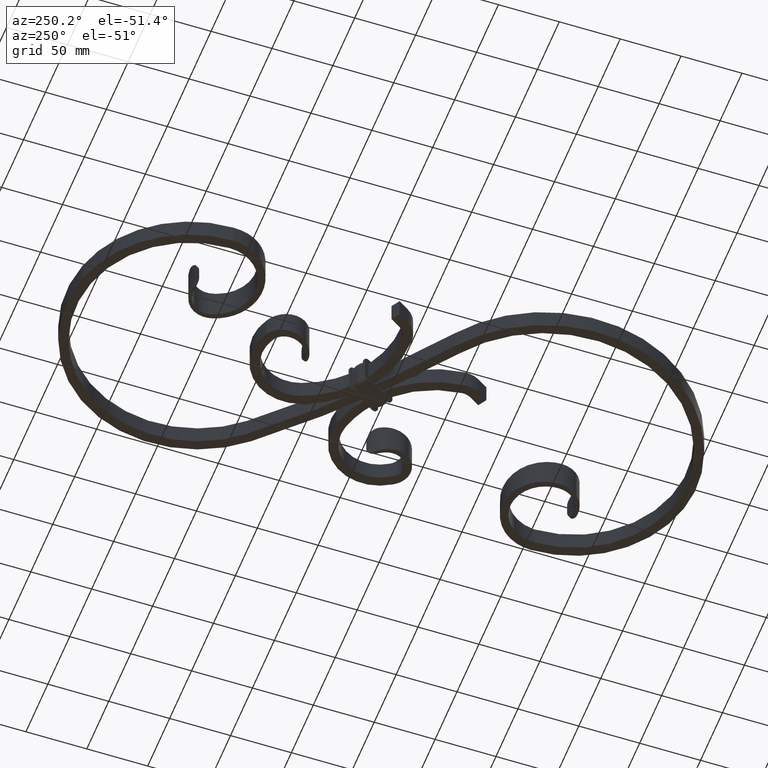
[diagram: clean part render]
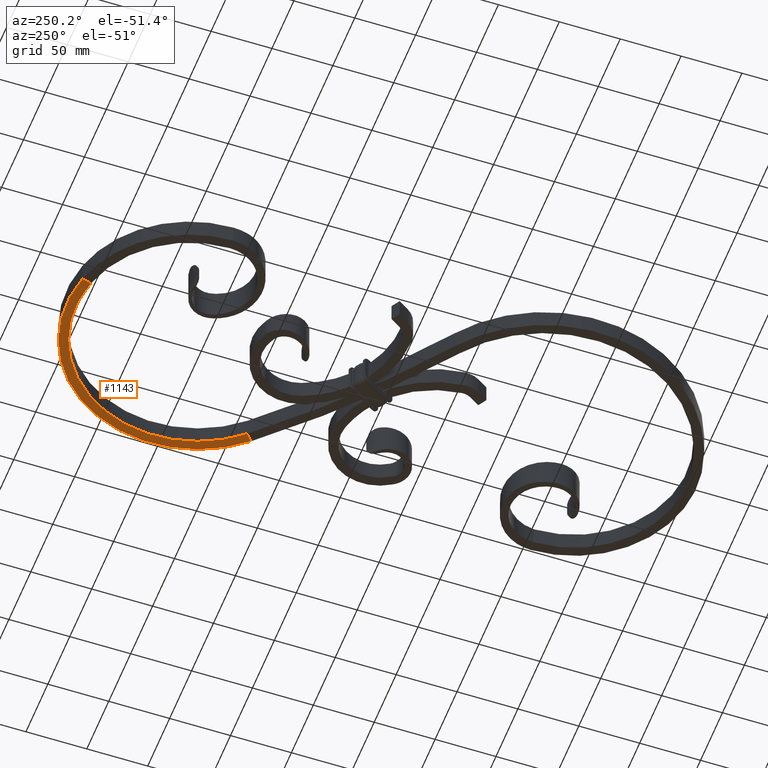
[diagram: same view with one face highlighted and labeled with its STEP entity id]
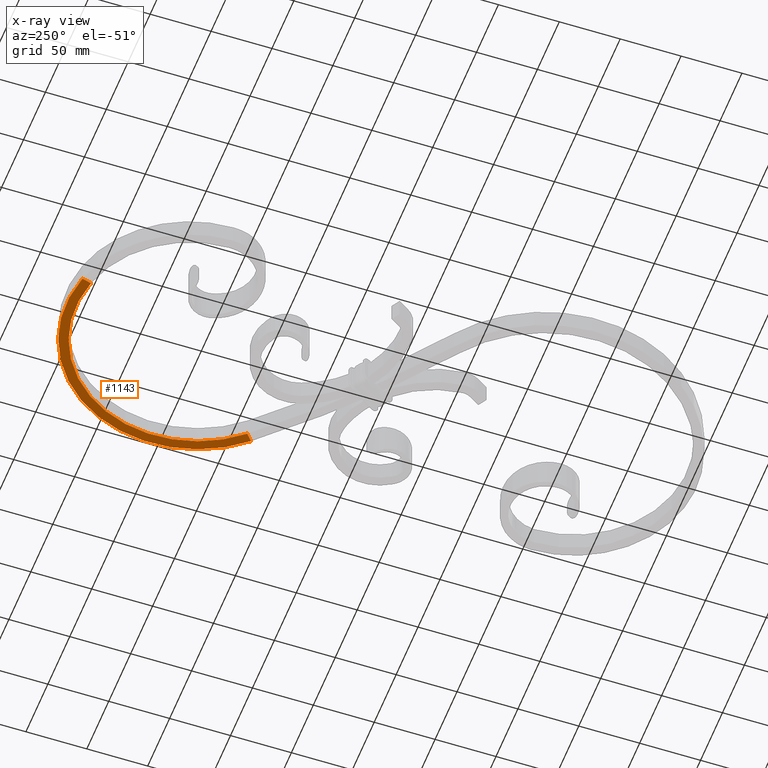
[diagram: x-ray of the same camera — body ghosted, the highlighted face saturated]
A machine part, auxiliary view. The second image highlights one B-rep face of the part: STEP entity #1143.
The next image is the same camera in x-ray: the body ghosted, the highlighted face saturated — about 0% of this face is hidden behind the body in this view.
In plain terms, the highlighted planar face has unit normal (-0, 0, -1).
Its self-contained STEP definition (entity closure, byte-faithful):
#258 = VECTOR ( 'NONE', #15962, 1000.000000000000114 ) ;
#297 = CARTESIAN_POINT ( 'NONE',  ( -23.00000000000000711, 248.8245836551853927, -8.000000000000000000 ) ) ;
#515 = LINE ( 'NONE', #7267, #4664 ) ;
#1143 = ADVANCED_FACE ( 'NONE', ( #12350 ), #11701, .T. ) ;
#1395 = CARTESIAN_POINT ( 'NONE',  ( -24.99999999999998579, 256.5705503476002605, -8.000000000000000000 ) ) ;
#1455 = CARTESIAN_POINT ( 'NONE',  ( 82.05368058509193929, 79.50580557878959098, -8.000000000000000000 ) ) ;
#1512 = AXIS2_PLACEMENT_3D ( 'NONE', #5872, #10064, #7119 ) ;
#2724 = EDGE_LOOP ( 'NONE', ( #17123, #13056, #4266, #12515 ) ) ;
#4266 = ORIENTED_EDGE ( 'NONE', *, *, #16574, .T. ) ;
#4330 = DIRECTION ( 'NONE',  ( -0.2499999999999998335, 0.9682458365518543664, 0.000000000000000000 ) ) ;
#4664 = VECTOR ( 'NONE', #17497, 1000.000000000000000 ) ;
#4904 = AXIS2_PLACEMENT_3D ( 'NONE', #14545, #10187, #13132 ) ;
#5605 = AXIS2_PLACEMENT_3D ( 'NONE', #5738, #6001, #4330 ) ;
#5738 = CARTESIAN_POINT ( 'NONE',  ( 1.999999999999987121, 151.9999999999999716, -8.000000000000000000 ) ) ;
#5872 = CARTESIAN_POINT ( 'NONE',  ( -25.00000000000018829, 256.5705503476009994, -8.000000000000000000 ) ) ;
#6001 = DIRECTION ( 'NONE',  ( -0.000000000000000000, -0.000000000000000000, -1.000000000000000000 ) ) ;
#6188 = EDGE_CURVE ( 'NONE', #12107, #9625, #15256, .T. ) ;
#6237 = CARTESIAN_POINT ( 'NONE',  ( 76.12377831952960605, 84.87574590628662463, -8.000000000000000000 ) ) ;
#7119 = DIRECTION ( 'NONE',  ( -1.000000000000000000, 0.000000000000000000, 0.000000000000000000 ) ) ;
#7267 = CARTESIAN_POINT ( 'NONE',  ( 82.05368058509193929, 79.50580557878963361, -8.000000000000000000 ) ) ;
#9075 = CIRCLE ( 'NONE', #5605, 108.0000000000007958 ) ;
#9625 = VERTEX_POINT ( 'NONE', #6237 ) ;
#10064 = DIRECTION ( 'NONE',  ( -0.000000000000000000, 0.000000000000000000, -1.000000000000000000 ) ) ;
#10187 = DIRECTION ( 'NONE',  ( -0.000000000000000000, -0.000000000000000000, -1.000000000000000000 ) ) ;
#11701 = PLANE ( 'NONE',  #1512 ) ;
#12107 = VERTEX_POINT ( 'NONE', #297 ) ;
#12350 = FACE_OUTER_BOUND ( 'NONE', #2724, .T. ) ;
#12515 = ORIENTED_EDGE ( 'NONE', *, *, #14389, .T. ) ;
#12946 = CARTESIAN_POINT ( 'NONE',  ( -24.99999999999999289, 256.5705503476002605, -8.000000000000000000 ) ) ;
#13056 = ORIENTED_EDGE ( 'NONE', *, *, #6188, .F. ) ;
#13132 = DIRECTION ( 'NONE',  ( -0.2499999999999997502, 0.9682458365518543664, 0.000000000000000000 ) ) ;
#14389 = EDGE_CURVE ( 'NONE', #15801, #18759, #9075, .T. ) ;
#14545 = CARTESIAN_POINT ( 'NONE',  ( 1.999999999999987121, 151.9999999999999716, -8.000000000000000000 ) ) ;
#15155 = EDGE_CURVE ( 'NONE', #9625, #18759, #515, .T. ) ;
#15256 = CIRCLE ( 'NONE', #4904, 100.0000000000007958 ) ;
#15801 = VERTEX_POINT ( 'NONE', #1395 ) ;
#15962 = DIRECTION ( 'NONE',  ( -0.2500000000000001110, 0.9682458365518541443, -0.000000000000000000 ) ) ;
#16574 = EDGE_CURVE ( 'NONE', #12107, #15801, #17944, .T. ) ;
#17123 = ORIENTED_EDGE ( 'NONE', *, *, #15155, .F. ) ;
#17497 = DIRECTION ( 'NONE',  ( 0.7412377831952905449, -0.6712425409371276519, -0.000000000000000000 ) ) ;
#17944 = LINE ( 'NONE', #12946, #258 ) ;
#18759 = VERTEX_POINT ( 'NONE', #1455 ) ;